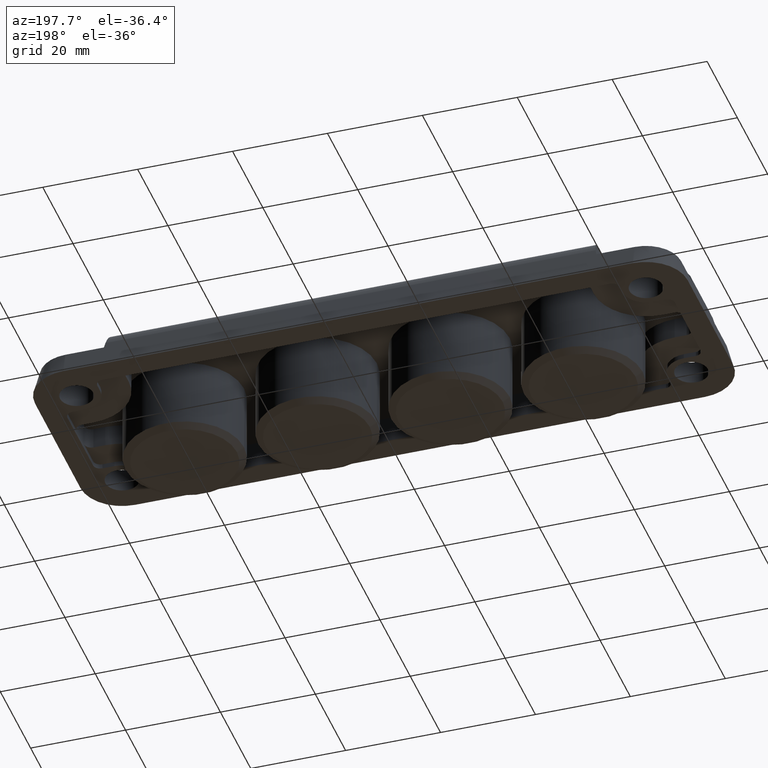
[diagram: clean part render]
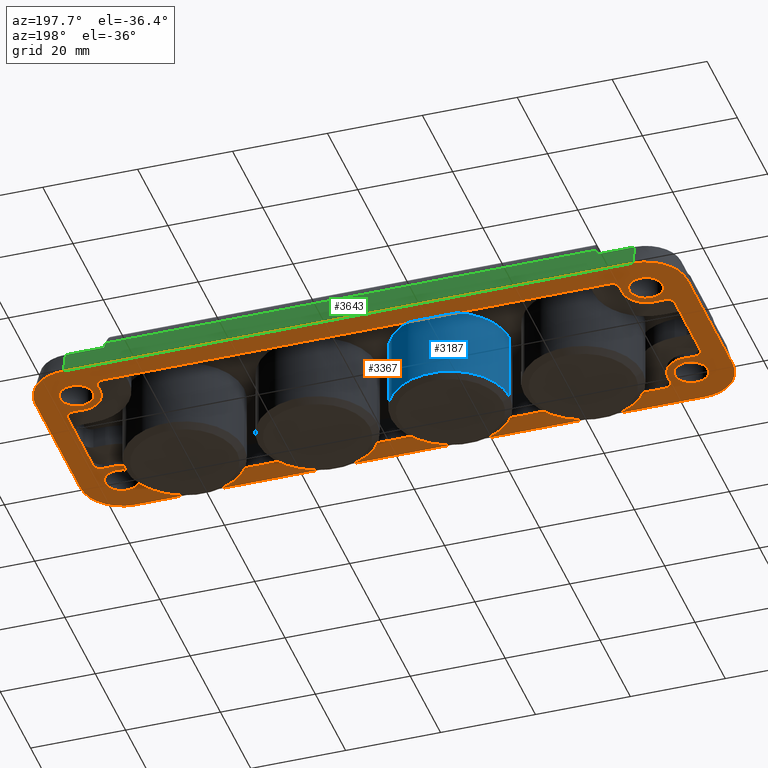
[diagram: same view with three faces highlighted in distinct colors, each labeled with its STEP entity id]
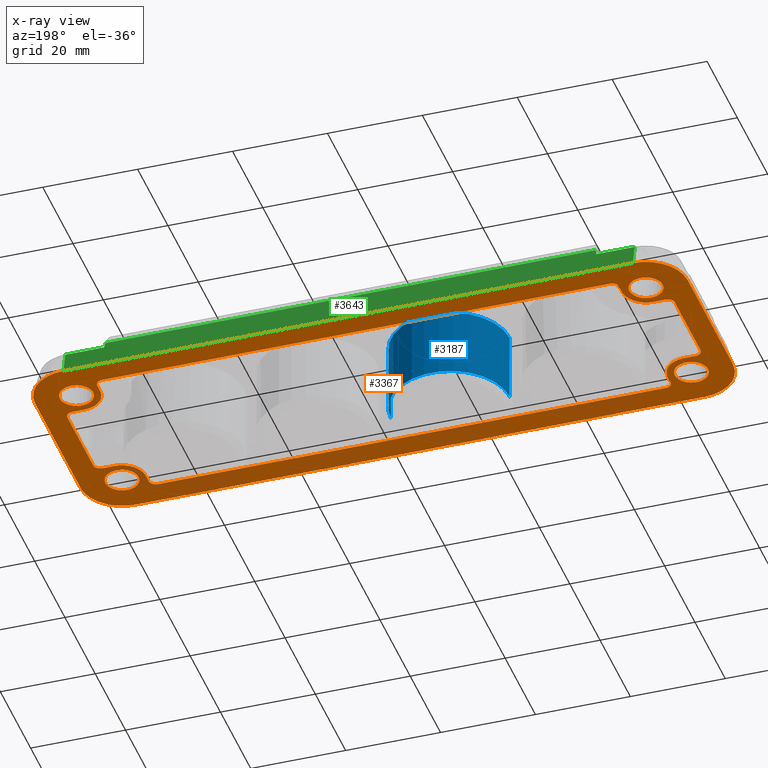
[diagram: x-ray of the same camera — body ghosted, the three highlighted faces saturated]
A machine part, auxiliary view with three faces highlighted in distinct colors.
The next image is the same camera in x-ray (body ghosted, the three faces saturated) — at least one of them is partly hidden behind the body in this view.
Their STEP definitions:

[orange] entity #3367 — the highlighted planar face has unit normal (0, -0, -1).
#1 = LINE ( 'NONE', #2269, #2408 ) ;
#2 = AXIS2_PLACEMENT_3D ( 'NONE', #2709, #1738, #841 ) ;
#3 = CARTESIAN_POINT ( 'NONE',  ( 68.75000000000005700, 15.00000000000001400, 0.0000000000000000000 ) ) ;
#18 = AXIS2_PLACEMENT_3D ( 'NONE', #431, #2366, #493 ) ;
#23 = ORIENTED_EDGE ( 'NONE', *, *, #2373, .T. ) ;
#32 = EDGE_CURVE ( 'NONE', #2331, #2320, #1364, .T. ) ;
#47 = CARTESIAN_POINT ( 'NONE',  ( 60.00000000000006400, -15.00000000000001400, 0.0000000000000000000 ) ) ;
#53 = CIRCLE ( 'NONE', #1791, 8.750000000000021300 ) ;
#70 = DIRECTION ( 'NONE',  ( 1.000000000000000000, 0.0000000000000000000, 3.081487911019574600E-033 ) ) ;
#78 = DIRECTION ( 'NONE',  ( 3.469446951953592900E-015, 1.000000000000000000, 3.097796936995217000E-032 ) ) ;
#81 = EDGE_LOOP ( 'NONE', ( #23, #1049 ) ) ;
#82 = CARTESIAN_POINT ( 'NONE',  ( -53.50000000000004300, -17.00000000000001400, 0.0000000000000000000 ) ) ;
#134 = ORIENTED_EDGE ( 'NONE', *, *, #1915, .F. ) ;
#135 = ORIENTED_EDGE ( 'NONE', *, *, #439, .F. ) ;
#136 = CARTESIAN_POINT ( 'NONE',  ( 60.00000000000007100, 15.00000000000001400, 0.0000000000000000000 ) ) ;
#174 = EDGE_CURVE ( 'NONE', #1181, #271, #1166, .T. ) ;
#212 = EDGE_LOOP ( 'NONE', ( #2571, #2336 ) ) ;
#225 = VERTEX_POINT ( 'NONE', #1515 ) ;
#250 = CARTESIAN_POINT ( 'NONE',  ( -62.50000000000005700, -8.500000000000007100, 0.0000000000000000000 ) ) ;
#270 = VERTEX_POINT ( 'NONE', #1250 ) ;
#271 = VERTEX_POINT ( 'NONE', #2773 ) ;
#275 = EDGE_CURVE ( 'NONE', #2019, #848, #2886, .T. ) ;
#319 = CARTESIAN_POINT ( 'NONE',  ( 62.50000000000004300, -10.00000000000000900, 0.0000000000000000000 ) ) ;
#324 = VERTEX_POINT ( 'NONE', #2181 ) ;
#326 = DIRECTION ( 'NONE',  ( -1.000000000000000000, 6.162975822039150600E-033, -3.081487911019575300E-033 ) ) ;
#327 = EDGE_LOOP ( 'NONE', ( #747, #3603 ) ) ;
#355 = EDGE_CURVE ( 'NONE', #361, #1500, #1848, .T. ) ;
#361 = VERTEX_POINT ( 'NONE', #593 ) ;
#388 = DIRECTION ( 'NONE',  ( -1.000000000000000000, 0.0000000000000000000, -3.081487911019574600E-033 ) ) ;
#409 = DIRECTION ( 'NONE',  ( 3.081487911019577400E-033, 3.118160315277577000E-032, 1.000000000000000000 ) ) ;
#415 = AXIS2_PLACEMENT_3D ( 'NONE', #564, #3641, #2710 ) ;
#421 = VERTEX_POINT ( 'NONE', #319 ) ;
#431 = CARTESIAN_POINT ( 'NONE',  ( -60.00000000000004300, -15.00000000000001400, 0.0000000000000000000 ) ) ;
#439 = EDGE_CURVE ( 'NONE', #3709, #2428, #1, .T. ) ;
#450 = FACE_BOUND ( 'NONE', #1151, .T. ) ;
#462 = DIRECTION ( 'NONE',  ( 3.081487911019577400E-033, 3.118160315277577000E-032, 1.000000000000000000 ) ) ;
#467 = DIRECTION ( 'NONE',  ( 1.000000000000000000, 0.0000000000000000000, 3.081487911019574600E-033 ) ) ;
#485 = EDGE_CURVE ( 'NONE', #3557, #2855, #3677, .T. ) ;
#493 = DIRECTION ( 'NONE',  ( -1.000000000000000000, 0.0000000000000000000, -3.081487911019574600E-033 ) ) ;
#508 = AXIS2_PLACEMENT_3D ( 'NONE', #526, #2836, #1853 ) ;
#511 = VERTEX_POINT ( 'NONE', #1353 ) ;
#512 = CARTESIAN_POINT ( 'NONE',  ( 60.00000000000007800, -23.74999999999999300, 0.0000000000000000000 ) ) ;
#517 = EDGE_CURVE ( 'NONE', #225, #1139, #1073, .T. ) ;
#518 = CARTESIAN_POINT ( 'NONE',  ( 53.50000000000007800, 17.00000000000001400, 0.0000000000000000000 ) ) ;
#526 = CARTESIAN_POINT ( 'NONE',  ( 53.50000000000007100, -17.00000000000001400, 0.0000000000000000000 ) ) ;
#528 = VERTEX_POINT ( 'NONE', #1054 ) ;
#536 = CIRCLE ( 'NONE', #761, 3.500000000000003100 ) ;
#547 = AXIS2_PLACEMENT_3D ( 'NONE', #250, #891, #2743 ) ;
#557 = ORIENTED_EDGE ( 'NONE', *, *, #32, .F. ) ;
#564 = CARTESIAN_POINT ( 'NONE',  ( -60.00000000000004300, -15.00000000000001400, 0.0000000000000000000 ) ) ;
#572 = ORIENTED_EDGE ( 'NONE', *, *, #355, .F. ) ;
#577 = ORIENTED_EDGE ( 'NONE', *, *, #1495, .F. ) ;
#578 = VERTEX_POINT ( 'NONE', #1382 ) ;
#593 = CARTESIAN_POINT ( 'NONE',  ( 55.00000000000007800, -15.00000000000001400, 0.0000000000000000000 ) ) ;
#602 = LINE ( 'NONE', #720, #1081 ) ;
#616 = CARTESIAN_POINT ( 'NONE',  ( 55.00000000000006400, -17.00000000000001400, 0.0000000000000000000 ) ) ;
#624 = AXIS2_PLACEMENT_3D ( 'NONE', #1998, #3233, #1968 ) ;
#636 = CARTESIAN_POINT ( 'NONE',  ( 60.00000000000006400, -15.00000000000001400, 0.0000000000000000000 ) ) ;
#643 = VECTOR ( 'NONE', #3090, 1000.000000000000000 ) ;
#669 = DIRECTION ( 'NONE',  ( -1.000000000000000000, 0.0000000000000000000, -3.081487911019574600E-033 ) ) ;
#678 = ORIENTED_EDGE ( 'NONE', *, *, #2586, .F. ) ;
#683 = AXIS2_PLACEMENT_3D ( 'NONE', #1722, #2707, #2407 ) ;
#689 = LINE ( 'NONE', #2911, #2929 ) ;
#690 = CARTESIAN_POINT ( 'NONE',  ( -60.00000000000005700, 23.75000000000005000, 0.0000000000000000000 ) ) ;
#695 = EDGE_CURVE ( 'NONE', #2464, #2331, #2256, .T. ) ;
#702 = EDGE_CURVE ( 'NONE', #864, #3458, #4018, .T. ) ;
#711 = EDGE_LOOP ( 'NONE', ( #577, #557, #2639, #1812, #2727, #2333, #2517, #678, #3098, #1633, #2282, #3947, #2125, #901, #3309, #135, #2130, #572, #941, #3688, #1980, #896, #134, #906 ) ) ;
#720 = CARTESIAN_POINT ( 'NONE',  ( -60.00000000000005700, -23.74999999999999300, 0.0000000000000000000 ) ) ;
#733 = CIRCLE ( 'NONE', #2462, 1.500000000000001300 ) ;
#738 = CARTESIAN_POINT ( 'NONE',  ( -53.50000000000004300, -18.50000000000001800, 0.0000000000000000000 ) ) ;
#743 = DIRECTION ( 'NONE',  ( -3.081487911019577400E-033, -3.118160315277577000E-032, -1.000000000000000000 ) ) ;
#747 = ORIENTED_EDGE ( 'NONE', *, *, #485, .T. ) ;
#749 = EDGE_CURVE ( 'NONE', #3161, #1529, #1753, .T. ) ;
#761 = AXIS2_PLACEMENT_3D ( 'NONE', #3263, #462, #1993 ) ;
#780 = CIRCLE ( 'NONE', #1979, 1.499999999999980500 ) ;
#787 = CARTESIAN_POINT ( 'NONE',  ( 63.50000000000007100, 15.00000000000001400, -1.078520768856852100E-032 ) ) ;
#801 = CARTESIAN_POINT ( 'NONE',  ( -60.00000000000005000, 10.00000000000000900, 0.0000000000000000000 ) ) ;
#815 = AXIS2_PLACEMENT_3D ( 'NONE', #1164, #2460, #3056 ) ;
#837 = DIRECTION ( 'NONE',  ( -1.000000000000000000, 0.0000000000000000000, -3.081487911019574600E-033 ) ) ;
#841 = DIRECTION ( 'NONE',  ( -1.000000000000000000, 0.0000000000000000000, -3.081487911019577400E-033 ) ) ;
#843 = ORIENTED_EDGE ( 'NONE', *, *, #3264, .T. ) ;
#847 = CARTESIAN_POINT ( 'NONE',  ( -55.00000000000002100, -17.00000000000001400, 0.0000000000000000000 ) ) ;
#848 = VERTEX_POINT ( 'NONE', #3420 ) ;
#864 = VERTEX_POINT ( 'NONE', #3 ) ;
#874 = LINE ( 'NONE', #3008, #968 ) ;
#884 = DIRECTION ( 'NONE',  ( 3.081487911019577400E-033, 3.118160315277577000E-032, 1.000000000000000000 ) ) ;
#891 = DIRECTION ( 'NONE',  ( -3.081487911019577400E-033, -3.118160315277577000E-032, -1.000000000000000000 ) ) ;
#892 = EDGE_CURVE ( 'NONE', #1911, #511, #1844, .T. ) ;
#894 = CARTESIAN_POINT ( 'NONE',  ( 56.50000000000006400, -15.00000000000001400, 1.078520768856851900E-032 ) ) ;
#896 = ORIENTED_EDGE ( 'NONE', *, *, #892, .F. ) ;
#901 = ORIENTED_EDGE ( 'NONE', *, *, #3106, .F. ) ;
#906 = ORIENTED_EDGE ( 'NONE', *, *, #3293, .F. ) ;
#911 = VERTEX_POINT ( 'NONE', #3164 ) ;
#941 = ORIENTED_EDGE ( 'NONE', *, *, #3439, .F. ) ;
#945 = DIRECTION ( 'NONE',  ( -1.000000000000000000, 0.0000000000000000000, -3.081487911019574600E-033 ) ) ;
#968 = VECTOR ( 'NONE', #837, 1000.000000000000000 ) ;
#973 = DIRECTION ( 'NONE',  ( -1.000000000000000000, 0.0000000000000000000, -3.081487911019580800E-033 ) ) ;
#976 = CARTESIAN_POINT ( 'NONE',  ( 60.00000000000007800, 15.00000000000001400, 0.0000000000000000000 ) ) ;
#980 = DIRECTION ( 'NONE',  ( -1.000000000000000000, 0.0000000000000000000, -3.081487911019573600E-033 ) ) ;
#1033 = CIRCLE ( 'NONE', #4015, 4.999999999999990200 ) ;
#1049 = ORIENTED_EDGE ( 'NONE', *, *, #1174, .T. ) ;
#1050 = ORIENTED_EDGE ( 'NONE', *, *, #3414, .F. ) ;
#1052 = EDGE_CURVE ( 'NONE', #1973, #3355, #2447, .T. ) ;
#1054 = CARTESIAN_POINT ( 'NONE',  ( -64.00000000000007100, 8.500000000000007100, 0.0000000000000000000 ) ) ;
#1058 = EDGE_CURVE ( 'NONE', #1529, #528, #689, .T. ) ;
#1073 = CIRCLE ( 'NONE', #624, 3.500000000000003100 ) ;
#1079 = FACE_BOUND ( 'NONE', #711, .T. ) ;
#1081 = VECTOR ( 'NONE', #70, 1000.000000000000000 ) ;
#1087 = DIRECTION ( 'NONE',  ( -1.000000000000000000, 0.0000000000000000000, -3.081487911019574600E-033 ) ) ;
#1102 = DIRECTION ( 'NONE',  ( 3.081487911019577400E-033, 3.118160315277577000E-032, 1.000000000000000000 ) ) ;
#1121 = CARTESIAN_POINT ( 'NONE',  ( -53.50000000000005700, 18.50000000000005700, 0.0000000000000000000 ) ) ;
#1137 = DIRECTION ( 'NONE',  ( -3.081487911019577400E-033, -3.118160315277577000E-032, -1.000000000000000000 ) ) ;
#1139 = VERTEX_POINT ( 'NONE', #787 ) ;
#1151 = EDGE_LOOP ( 'NONE', ( #843, #2328 ) ) ;
#1164 = CARTESIAN_POINT ( 'NONE',  ( -60.00000000000004300, 15.00000000000001400, 0.0000000000000000000 ) ) ;
#1166 = CIRCLE ( 'NONE', #1949, 8.750000000000021300 ) ;
#1171 = CARTESIAN_POINT ( 'NONE',  ( 63.50000000000007100, -15.00000000000001400, -1.078520768856852100E-032 ) ) ;
#1174 = EDGE_CURVE ( 'NONE', #3654, #2852, #1359, .T. ) ;
#1181 = VERTEX_POINT ( 'NONE', #512 ) ;
#1183 = CARTESIAN_POINT ( 'NONE',  ( 60.00000000000006400, 23.75000000000002100, 0.0000000000000000000 ) ) ;
#1207 = EDGE_CURVE ( 'NONE', #421, #2817, #874, .T. ) ;
#1214 = CARTESIAN_POINT ( 'NONE',  ( -56.50000000000002800, 15.00000000000001400, -1.078520768856852100E-032 ) ) ;
#1228 = VERTEX_POINT ( 'NONE', #3645 ) ;
#1238 = DIRECTION ( 'NONE',  ( 3.081487911019577400E-033, 3.118160315277577000E-032, 1.000000000000000000 ) ) ;
#1243 = CARTESIAN_POINT ( 'NONE',  ( -53.50000000000005000, 17.00000000000001400, 0.0000000000000000000 ) ) ;
#1250 = CARTESIAN_POINT ( 'NONE',  ( -60.00000000000005700, 23.75000000000005000, 0.0000000000000000000 ) ) ;
#1253 = CIRCLE ( 'NONE', #2, 1.500000000000001300 ) ;
#1256 = DIRECTION ( 'NONE',  ( -1.000000000000000000, 0.0000000000000000000, -3.081487911019573600E-033 ) ) ;
#1274 = CARTESIAN_POINT ( 'NONE',  ( -62.50000000000005700, 8.500000000000007100, 0.0000000000000000000 ) ) ;
#1283 = ORIENTED_EDGE ( 'NONE', *, *, #275, .F. ) ;
#1296 = DIRECTION ( 'NONE',  ( -1.000000000000000000, 0.0000000000000000000, -3.081487911019580800E-033 ) ) ;
#1327 = VERTEX_POINT ( 'NONE', #2390 ) ;
#1353 = CARTESIAN_POINT ( 'NONE',  ( 64.00000000000004300, -8.500000000000007100, 0.0000000000000000000 ) ) ;
#1359 = CIRCLE ( 'NONE', #18, 3.500000000000003100 ) ;
#1364 = LINE ( 'NONE', #2824, #3973 ) ;
#1372 = DIRECTION ( 'NONE',  ( -3.469446951953592900E-015, 1.000000000000000000, 3.061486495784442000E-032 ) ) ;
#1377 = CARTESIAN_POINT ( 'NONE',  ( 62.50000000000004300, 10.00000000000000900, 0.0000000000000000000 ) ) ;
#1382 = CARTESIAN_POINT ( 'NONE',  ( -60.00000000000005000, 10.00000000000000900, 0.0000000000000000000 ) ) ;
#1384 = CARTESIAN_POINT ( 'NONE',  ( 60.00000000000007100, 10.00000000000000900, 0.0000000000000000000 ) ) ;
#1434 = DIRECTION ( 'NONE',  ( -1.000000000000000000, 0.0000000000000000000, -3.081487911019577400E-033 ) ) ;
#1456 = DIRECTION ( 'NONE',  ( 1.000000000000000000, 0.0000000000000000000, 3.081487911019574600E-033 ) ) ;
#1460 = VECTOR ( 'NONE', #1456, 1000.000000000000000 ) ;
#1495 = EDGE_CURVE ( 'NONE', #2320, #1228, #1992, .T. ) ;
#1500 = VERTEX_POINT ( 'NONE', #3768 ) ;
#1510 = AXIS2_PLACEMENT_3D ( 'NONE', #518, #2669, #2976 ) ;
#1515 = CARTESIAN_POINT ( 'NONE',  ( 56.50000000000007100, 15.00000000000001400, 1.078520768856851900E-032 ) ) ;
#1522 = LINE ( 'NONE', #2168, #2940 ) ;
#1523 = DIRECTION ( 'NONE',  ( 3.081487911019577400E-033, 3.118160315277577000E-032, 1.000000000000000000 ) ) ;
#1527 = DIRECTION ( 'NONE',  ( -1.000000000000000000, 0.0000000000000000000, -3.081487911019574600E-033 ) ) ;
#1529 = VERTEX_POINT ( 'NONE', #3480 ) ;
#1554 = EDGE_CURVE ( 'NONE', #3458, #270, #4011, .T. ) ;
#1603 = EDGE_CURVE ( 'NONE', #2855, #3557, #3670, .T. ) ;
#1620 = DIRECTION ( 'NONE',  ( -3.081487911019577400E-033, -3.118160315277577000E-032, -1.000000000000000000 ) ) ;
#1625 = EDGE_CURVE ( 'NONE', #2428, #2524, #780, .T. ) ;
#1628 = CARTESIAN_POINT ( 'NONE',  ( -60.00000000000003600, 15.00000000000001400, 0.0000000000000000000 ) ) ;
#1633 = ORIENTED_EDGE ( 'NONE', *, *, #1058, .F. ) ;
#1650 = DIRECTION ( 'NONE',  ( -1.000000000000000000, 0.0000000000000000000, -3.081487911019577400E-033 ) ) ;
#1652 = LINE ( 'NONE', #3820, #3422 ) ;
#1698 = CARTESIAN_POINT ( 'NONE',  ( -60.00000000000002800, 15.00000000000001400, 0.0000000000000000000 ) ) ;
#1720 = CARTESIAN_POINT ( 'NONE',  ( 53.50000000000007100, 18.49999999999998900, 0.0000000000000000000 ) ) ;
#1722 = CARTESIAN_POINT ( 'NONE',  ( 60.00000000000007800, 15.00000000000001400, 0.0000000000000000000 ) ) ;
#1733 = EDGE_CURVE ( 'NONE', #1327, #2758, #2873, .T. ) ;
#1738 = DIRECTION ( 'NONE',  ( -3.081487911019577400E-033, -3.118160315277577000E-032, -1.000000000000000000 ) ) ;
#1753 = CIRCLE ( 'NONE', #547, 1.500000000000001300 ) ;
#1788 = CARTESIAN_POINT ( 'NONE',  ( -60.00000000000005700, -14.99999999999995700, 0.0000000000000000000 ) ) ;
#1791 = AXIS2_PLACEMENT_3D ( 'NONE', #1788, #2434, #2746 ) ;
#1801 = CARTESIAN_POINT ( 'NONE',  ( 62.50000000000004300, 8.500000000000007100, 0.0000000000000000000 ) ) ;
#1812 = ORIENTED_EDGE ( 'NONE', *, *, #3317, .F. ) ;
#1844 = LINE ( 'NONE', #4041, #2309 ) ;
#1848 = LINE ( 'NONE', #616, #3033 ) ;
#1853 = DIRECTION ( 'NONE',  ( -1.000000000000000000, 0.0000000000000000000, -3.081487911019573600E-033 ) ) ;
#1857 = CARTESIAN_POINT ( 'NONE',  ( -55.00000000000004300, 17.00000000000001400, 0.0000000000000000000 ) ) ;
#1882 = CARTESIAN_POINT ( 'NONE',  ( -60.00000000000003600, 15.00000000000001400, 0.0000000000000000000 ) ) ;
#1887 = DIRECTION ( 'NONE',  ( -3.469446951953592900E-015, -1.000000000000000000, -3.097796936995217000E-032 ) ) ;
#1892 = EDGE_CURVE ( 'NONE', #2472, #3064, #2732, .T. ) ;
#1896 = CIRCLE ( 'NONE', #3377, 8.750000000000021300 ) ;
#1897 = AXIS2_PLACEMENT_3D ( 'NONE', #976, #3135, #1256 ) ;
#1907 = CARTESIAN_POINT ( 'NONE',  ( -63.50000000000002800, 15.00000000000001400, 1.078520768856851900E-032 ) ) ;
#1911 = VERTEX_POINT ( 'NONE', #3653 ) ;
#1915 = EDGE_CURVE ( 'NONE', #2136, #1911, #733, .T. ) ;
#1945 = CARTESIAN_POINT ( 'NONE',  ( -55.00000000000003600, -17.00000000000001400, 0.0000000000000000000 ) ) ;
#1949 = AXIS2_PLACEMENT_3D ( 'NONE', #2421, #884, #2362 ) ;
#1958 = VECTOR ( 'NONE', #78, 1000.000000000000000 ) ;
#1968 = DIRECTION ( 'NONE',  ( -1.000000000000000000, 0.0000000000000000000, -3.081487911019574600E-033 ) ) ;
#1973 = VERTEX_POINT ( 'NONE', #894 ) ;
#1979 = AXIS2_PLACEMENT_3D ( 'NONE', #82, #743, #2261 ) ;
#1980 = ORIENTED_EDGE ( 'NONE', *, *, #4003, .F. ) ;
#1981 = ORIENTED_EDGE ( 'NONE', *, *, #3954, .F. ) ;
#1982 = CARTESIAN_POINT ( 'NONE',  ( -55.00000000000002800, -15.00000000000001400, 0.0000000000000000000 ) ) ;
#1985 = AXIS2_PLACEMENT_3D ( 'NONE', #1698, #3906, #2660 ) ;
#1992 = CIRCLE ( 'NONE', #1897, 5.000000000000011500 ) ;
#1993 = DIRECTION ( 'NONE',  ( -1.000000000000000000, 0.0000000000000000000, -3.081487911019574600E-033 ) ) ;
#1998 = CARTESIAN_POINT ( 'NONE',  ( 60.00000000000007100, 15.00000000000001400, 0.0000000000000000000 ) ) ;
#2004 = LINE ( 'NONE', #1384, #2748 ) ;
#2019 = VERTEX_POINT ( 'NONE', #2897 ) ;
#2060 = AXIS2_PLACEMENT_3D ( 'NONE', #47, #3191, #388 ) ;
#2068 = DIRECTION ( 'NONE',  ( 1.000000000000000000, 0.0000000000000000000, 3.081487911019577400E-033 ) ) ;
#2122 = ORIENTED_EDGE ( 'NONE', *, *, #1554, .F. ) ;
#2125 = ORIENTED_EDGE ( 'NONE', *, *, #1892, .F. ) ;
#2130 = ORIENTED_EDGE ( 'NONE', *, *, #3609, .F. ) ;
#2136 = VERTEX_POINT ( 'NONE', #1377 ) ;
#2143 = AXIS2_PLACEMENT_3D ( 'NONE', #1243, #2851, #980 ) ;
#2154 = DIRECTION ( 'NONE',  ( 1.000000000000000000, 0.0000000000000000000, 3.081487911019578000E-033 ) ) ;
#2168 = CARTESIAN_POINT ( 'NONE',  ( -60.00000000000005000, -10.00000000000000900, 0.0000000000000000000 ) ) ;
#2177 = VERTEX_POINT ( 'NONE', #1121 ) ;
#2181 = CARTESIAN_POINT ( 'NONE',  ( -62.50000000000005700, 10.00000000000000900, 0.0000000000000000000 ) ) ;
#2185 = ORIENTED_EDGE ( 'NONE', *, *, #2892, .F. ) ;
#2205 = DIRECTION ( 'NONE',  ( 0.0000000000000000000, -1.000000000000000000, -3.079641716389829500E-032 ) ) ;
#2209 = DIRECTION ( 'NONE',  ( 3.081487911019577400E-033, 3.118160315277577000E-032, 1.000000000000000000 ) ) ;
#2236 = CARTESIAN_POINT ( 'NONE',  ( 60.00000000000007100, -10.00000000000000900, 0.0000000000000000000 ) ) ;
#2250 = DIRECTION ( 'NONE',  ( 0.0000000000000000000, 1.000000000000000000, 3.079641716389829500E-032 ) ) ;
#2256 = CIRCLE ( 'NONE', #1510, 1.499999999999980500 ) ;
#2261 = DIRECTION ( 'NONE',  ( 1.000000000000000000, 0.0000000000000000000, 3.081487911019573600E-033 ) ) ;
#2269 = CARTESIAN_POINT ( 'NONE',  ( -53.50000000000004300, -18.50000000000001800, 0.0000000000000000000 ) ) ;
#2272 = EDGE_CURVE ( 'NONE', #528, #324, #3759, .T. ) ;
#2282 = ORIENTED_EDGE ( 'NONE', *, *, #749, .F. ) ;
#2309 = VECTOR ( 'NONE', #2205, 1000.000000000000000 ) ;
#2316 = LINE ( 'NONE', #2977, #2503 ) ;
#2320 = VERTEX_POINT ( 'NONE', #2599 ) ;
#2328 = ORIENTED_EDGE ( 'NONE', *, *, #517, .T. ) ;
#2331 = VERTEX_POINT ( 'NONE', #3857 ) ;
#2333 = ORIENTED_EDGE ( 'NONE', *, *, #1733, .F. ) ;
#2336 = ORIENTED_EDGE ( 'NONE', *, *, #1052, .T. ) ;
#2362 = DIRECTION ( 'NONE',  ( -1.000000000000000000, 0.0000000000000000000, -3.081487911019576000E-033 ) ) ;
#2365 = FACE_BOUND ( 'NONE', #212, .T. ) ;
#2366 = DIRECTION ( 'NONE',  ( 3.081487911019577400E-033, 3.118160315277577000E-032, 1.000000000000000000 ) ) ;
#2373 = EDGE_CURVE ( 'NONE', #2852, #3654, #536, .T. ) ;
#2390 = CARTESIAN_POINT ( 'NONE',  ( -55.00000000000001400, 15.00000000000001400, 0.0000000000000000000 ) ) ;
#2398 = LINE ( 'NONE', #801, #1460 ) ;
#2400 = VECTOR ( 'NONE', #326, 1000.000000000000000 ) ;
#2407 = DIRECTION ( 'NONE',  ( 1.000000000000000000, 0.0000000000000000000, 3.081487911019572200E-033 ) ) ;
#2408 = VECTOR ( 'NONE', #669, 1000.000000000000000 ) ;
#2421 = CARTESIAN_POINT ( 'NONE',  ( 60.00000000000007800, -14.99999999999995700, 0.0000000000000000000 ) ) ;
#2428 = VERTEX_POINT ( 'NONE', #738 ) ;
#2434 = DIRECTION ( 'NONE',  ( 3.081487911019577400E-033, 3.118160315277577000E-032, 1.000000000000000000 ) ) ;
#2447 = CIRCLE ( 'NONE', #2060, 3.500000000000003100 ) ;
#2460 = DIRECTION ( 'NONE',  ( 3.081487911019574600E-033, -3.118160315277577000E-032, -1.000000000000000000 ) ) ;
#2462 = AXIS2_PLACEMENT_3D ( 'NONE', #1801, #1137, #2068 ) ;
#2464 = VERTEX_POINT ( 'NONE', #1720 ) ;
#2472 = VERTEX_POINT ( 'NONE', #1982 ) ;
#2491 = CARTESIAN_POINT ( 'NONE',  ( 53.50000000000007100, -18.50000000000001800, 0.0000000000000000000 ) ) ;
#2503 = VECTOR ( 'NONE', #3692, 1000.000000000000000 ) ;
#2517 = ORIENTED_EDGE ( 'NONE', *, *, #3288, .F. ) ;
#2524 = VERTEX_POINT ( 'NONE', #847 ) ;
#2571 = ORIENTED_EDGE ( 'NONE', *, *, #3656, .T. ) ;
#2586 = EDGE_CURVE ( 'NONE', #324, #578, #2398, .T. ) ;
#2599 = CARTESIAN_POINT ( 'NONE',  ( 55.00000000000007100, 15.00000000000001400, 0.0000000000000000000 ) ) ;
#2609 = CIRCLE ( 'NONE', #1985, 5.000000000000011500 ) ;
#2639 = ORIENTED_EDGE ( 'NONE', *, *, #695, .F. ) ;
#2660 = DIRECTION ( 'NONE',  ( 1.000000000000000000, 0.0000000000000000000, 3.081487911019576300E-033 ) ) ;
#2669 = DIRECTION ( 'NONE',  ( -3.081487911019577400E-033, -3.118160315277577000E-032, -1.000000000000000000 ) ) ;
#2674 = CARTESIAN_POINT ( 'NONE',  ( -55.00000000000004300, 17.00000000000001400, 0.0000000000000000000 ) ) ;
#2700 = CIRCLE ( 'NONE', #508, 1.499999999999980500 ) ;
#2707 = DIRECTION ( 'NONE',  ( 3.081487911019577400E-033, 3.118160315277577000E-032, 1.000000000000000000 ) ) ;
#2709 = CARTESIAN_POINT ( 'NONE',  ( 62.50000000000004300, -8.500000000000007100, 0.0000000000000000000 ) ) ;
#2710 = DIRECTION ( 'NONE',  ( -1.000000000000000000, 0.0000000000000000000, -3.081487911019578000E-033 ) ) ;
#2720 = AXIS2_PLACEMENT_3D ( 'NONE', #1882, #2209, #973 ) ;
#2721 = ORIENTED_EDGE ( 'NONE', *, *, #3840, .F. ) ;
#2727 = ORIENTED_EDGE ( 'NONE', *, *, #2834, .F. ) ;
#2732 = CIRCLE ( 'NONE', #415, 4.999999999999990200 ) ;
#2743 = DIRECTION ( 'NONE',  ( 1.000000000000000000, 0.0000000000000000000, 3.081487911019577400E-033 ) ) ;
#2746 = DIRECTION ( 'NONE',  ( 1.000000000000000000, 0.0000000000000000000, 3.081487911019576000E-033 ) ) ;
#2748 = VECTOR ( 'NONE', #467, 1000.000000000000000 ) ;
#2751 = AXIS2_PLACEMENT_3D ( 'NONE', #1628, #409, #1296 ) ;
#2758 = VERTEX_POINT ( 'NONE', #1857 ) ;
#2773 = CARTESIAN_POINT ( 'NONE',  ( 68.75000000000007100, -14.99999999999995700, 0.0000000000000000000 ) ) ;
#2781 = VECTOR ( 'NONE', #1372, 1000.000000000000000 ) ;
#2791 = CARTESIAN_POINT ( 'NONE',  ( -63.50000000000004300, -15.00000000000001400, 1.078520768856851900E-032 ) ) ;
#2797 = DIRECTION ( 'NONE',  ( 3.469446951953592900E-015, -1.000000000000000000, -3.061486495784442000E-032 ) ) ;
#2799 = AXIS2_PLACEMENT_3D ( 'NONE', #1274, #1620, #1650 ) ;
#2817 = VERTEX_POINT ( 'NONE', #2236 ) ;
#2824 = CARTESIAN_POINT ( 'NONE',  ( 55.00000000000007100, 17.00000000000001400, 0.0000000000000000000 ) ) ;
#2834 = EDGE_CURVE ( 'NONE', #2758, #2177, #2838, .T. ) ;
#2835 = FACE_OUTER_BOUND ( 'NONE', #3859, .T. ) ;
#2836 = DIRECTION ( 'NONE',  ( -3.081487911019577400E-033, -3.118160315277577000E-032, -1.000000000000000000 ) ) ;
#2838 = CIRCLE ( 'NONE', #2143, 1.499999999999980500 ) ;
#2851 = DIRECTION ( 'NONE',  ( -3.081487911019577400E-033, -3.118160315277577000E-032, -1.000000000000000000 ) ) ;
#2852 = VERTEX_POINT ( 'NONE', #3483 ) ;
#2855 = VERTEX_POINT ( 'NONE', #1907 ) ;
#2860 = DIRECTION ( 'NONE',  ( 0.0000000000000000000, 1.000000000000000000, 3.079641716389829500E-032 ) ) ;
#2873 = LINE ( 'NONE', #2674, #2781 ) ;
#2886 = LINE ( 'NONE', #3129, #643 ) ;
#2892 = EDGE_CURVE ( 'NONE', #911, #1181, #602, .T. ) ;
#2897 = CARTESIAN_POINT ( 'NONE',  ( -68.75000000000008500, 15.00000000000001400, 0.0000000000000000000 ) ) ;
#2911 = CARTESIAN_POINT ( 'NONE',  ( -64.00000000000007100, 8.500000000000007100, 0.0000000000000000000 ) ) ;
#2929 = VECTOR ( 'NONE', #2250, 1000.000000000000000 ) ;
#2940 = VECTOR ( 'NONE', #945, 1000.000000000000000 ) ;
#2976 = DIRECTION ( 'NONE',  ( 1.000000000000000000, 0.0000000000000000000, 3.081487911019573600E-033 ) ) ;
#2977 = CARTESIAN_POINT ( 'NONE',  ( -53.50000000000005700, 18.50000000000000400, 0.0000000000000000000 ) ) ;
#2990 = AXIS2_PLACEMENT_3D ( 'NONE', #136, #3921, #1087 ) ;
#3008 = CARTESIAN_POINT ( 'NONE',  ( 60.00000000000007100, -10.00000000000000900, 0.0000000000000000000 ) ) ;
#3033 = VECTOR ( 'NONE', #2797, 1000.000000000000000 ) ;
#3035 = FACE_BOUND ( 'NONE', #81, .T. ) ;
#3049 = EDGE_CURVE ( 'NONE', #3064, #3161, #1522, .T. ) ;
#3056 = DIRECTION ( 'NONE',  ( -1.000000000000000000, 0.0000000000000000000, -3.081487911019574600E-033 ) ) ;
#3064 = VERTEX_POINT ( 'NONE', #3413 ) ;
#3086 = CIRCLE ( 'NONE', #3096, 3.500000000000003100 ) ;
#3089 = FACE_BOUND ( 'NONE', #327, .T. ) ;
#3090 = DIRECTION ( 'NONE',  ( 0.0000000000000000000, -1.000000000000000000, -3.079641716389829500E-032 ) ) ;
#3096 = AXIS2_PLACEMENT_3D ( 'NONE', #636, #1238, #1527 ) ;
#3098 = ORIENTED_EDGE ( 'NONE', *, *, #2272, .F. ) ;
#3106 = EDGE_CURVE ( 'NONE', #2524, #2472, #3682, .T. ) ;
#3129 = CARTESIAN_POINT ( 'NONE',  ( -68.75000000000008500, -14.99999999999995700, 0.0000000000000000000 ) ) ;
#3135 = DIRECTION ( 'NONE',  ( 3.081487911019577400E-033, 3.118160315277577000E-032, 1.000000000000000000 ) ) ;
#3156 = CARTESIAN_POINT ( 'NONE',  ( -62.50000000000005700, -10.00000000000000900, 0.0000000000000000000 ) ) ;
#3161 = VERTEX_POINT ( 'NONE', #3156 ) ;
#3164 = CARTESIAN_POINT ( 'NONE',  ( -60.00000000000005700, -23.74999999999999300, 0.0000000000000000000 ) ) ;
#3191 = DIRECTION ( 'NONE',  ( 3.081487911019577400E-033, 3.118160315277577000E-032, 1.000000000000000000 ) ) ;
#3233 = DIRECTION ( 'NONE',  ( 3.081487911019577400E-033, 3.118160315277577000E-032, 1.000000000000000000 ) ) ;
#3263 = CARTESIAN_POINT ( 'NONE',  ( -60.00000000000004300, -15.00000000000001400, 0.0000000000000000000 ) ) ;
#3264 = EDGE_CURVE ( 'NONE', #1139, #225, #3427, .T. ) ;
#3288 = EDGE_CURVE ( 'NONE', #578, #1327, #2609, .T. ) ;
#3293 = EDGE_CURVE ( 'NONE', #1228, #2136, #2004, .T. ) ;
#3309 = ORIENTED_EDGE ( 'NONE', *, *, #1625, .F. ) ;
#3317 = EDGE_CURVE ( 'NONE', #2177, #2464, #2316, .T. ) ;
#3355 = VERTEX_POINT ( 'NONE', #1171 ) ;
#3367 = ADVANCED_FACE ( 'NONE', ( #2365, #450, #3035, #3089, #1079, #2835 ), #3931, .T. ) ;
#3377 = AXIS2_PLACEMENT_3D ( 'NONE', #3981, #1102, #1434 ) ;
#3392 = CARTESIAN_POINT ( 'NONE',  ( 60.00000000000006400, -15.00000000000001400, 0.0000000000000000000 ) ) ;
#3413 = CARTESIAN_POINT ( 'NONE',  ( -60.00000000000005000, -10.00000000000000900, 0.0000000000000000000 ) ) ;
#3414 = EDGE_CURVE ( 'NONE', #848, #911, #53, .T. ) ;
#3420 = CARTESIAN_POINT ( 'NONE',  ( -68.75000000000008500, -14.99999999999995700, 0.0000000000000000000 ) ) ;
#3422 = VECTOR ( 'NONE', #2860, 1000.000000000000000 ) ;
#3427 = CIRCLE ( 'NONE', #2990, 3.500000000000003100 ) ;
#3439 = EDGE_CURVE ( 'NONE', #2817, #361, #1033, .T. ) ;
#3458 = VERTEX_POINT ( 'NONE', #1183 ) ;
#3480 = CARTESIAN_POINT ( 'NONE',  ( -64.00000000000007100, -8.500000000000007100, 0.0000000000000000000 ) ) ;
#3483 = CARTESIAN_POINT ( 'NONE',  ( -56.50000000000003600, -15.00000000000001400, -1.078520768856852100E-032 ) ) ;
#3557 = VERTEX_POINT ( 'NONE', #1214 ) ;
#3603 = ORIENTED_EDGE ( 'NONE', *, *, #1603, .T. ) ;
#3609 = EDGE_CURVE ( 'NONE', #1500, #3709, #2700, .T. ) ;
#3641 = DIRECTION ( 'NONE',  ( 3.081487911019577400E-033, 3.118160315277577000E-032, 1.000000000000000000 ) ) ;
#3645 = CARTESIAN_POINT ( 'NONE',  ( 60.00000000000007100, 10.00000000000000900, 0.0000000000000000000 ) ) ;
#3650 = ORIENTED_EDGE ( 'NONE', *, *, #702, .F. ) ;
#3653 = CARTESIAN_POINT ( 'NONE',  ( 64.00000000000004300, 8.500000000000007100, 0.0000000000000000000 ) ) ;
#3654 = VERTEX_POINT ( 'NONE', #2791 ) ;
#3656 = EDGE_CURVE ( 'NONE', #3355, #1973, #3086, .T. ) ;
#3670 = CIRCLE ( 'NONE', #2751, 3.499999999999996000 ) ;
#3677 = CIRCLE ( 'NONE', #2720, 3.499999999999996000 ) ;
#3682 = LINE ( 'NONE', #1945, #1958 ) ;
#3688 = ORIENTED_EDGE ( 'NONE', *, *, #1207, .F. ) ;
#3692 = DIRECTION ( 'NONE',  ( 1.000000000000000000, -6.162975822039150600E-033, 3.081487911019575300E-033 ) ) ;
#3709 = VERTEX_POINT ( 'NONE', #2491 ) ;
#3759 = CIRCLE ( 'NONE', #2799, 1.500000000000001300 ) ;
#3768 = CARTESIAN_POINT ( 'NONE',  ( 55.00000000000006400, -17.00000000000001400, 0.0000000000000000000 ) ) ;
#3820 = CARTESIAN_POINT ( 'NONE',  ( 68.75000000000005700, -14.99999999999995700, 0.0000000000000000000 ) ) ;
#3834 = ORIENTED_EDGE ( 'NONE', *, *, #174, .F. ) ;
#3840 = EDGE_CURVE ( 'NONE', #271, #864, #1652, .T. ) ;
#3857 = CARTESIAN_POINT ( 'NONE',  ( 55.00000000000005700, 17.00000000000001400, 0.0000000000000000000 ) ) ;
#3859 = EDGE_LOOP ( 'NONE', ( #1981, #2122, #3650, #2721, #3834, #2185, #1050, #1283 ) ) ;
#3906 = DIRECTION ( 'NONE',  ( 3.081487911019577400E-033, 3.118160315277577000E-032, 1.000000000000000000 ) ) ;
#3921 = DIRECTION ( 'NONE',  ( 3.081487911019577400E-033, 3.118160315277577000E-032, 1.000000000000000000 ) ) ;
#3931 = PLANE ( 'NONE',  #815 ) ;
#3947 = ORIENTED_EDGE ( 'NONE', *, *, #3049, .F. ) ;
#3954 = EDGE_CURVE ( 'NONE', #270, #2019, #1896, .T. ) ;
#3973 = VECTOR ( 'NONE', #1887, 1000.000000000000000 ) ;
#3981 = CARTESIAN_POINT ( 'NONE',  ( -60.00000000000004300, 15.00000000000001400, 0.0000000000000000000 ) ) ;
#4003 = EDGE_CURVE ( 'NONE', #511, #421, #1253, .T. ) ;
#4011 = LINE ( 'NONE', #690, #2400 ) ;
#4015 = AXIS2_PLACEMENT_3D ( 'NONE', #3392, #1523, #2154 ) ;
#4018 = CIRCLE ( 'NONE', #683, 8.750000000000035500 ) ;
#4041 = CARTESIAN_POINT ( 'NONE',  ( 64.00000000000004300, 8.500000000000007100, 0.0000000000000000000 ) ) ;

[blue] entity #3187 — the highlighted cylindrical surface (partial cylindrical patch) has radius 12.5 mm, axis along (0, 0, 1).
#7 = CARTESIAN_POINT ( 'NONE',  ( -1.500000000000003100, 0.0000000000000000000, -65.35533905932739200 ) ) ;
#62 = DIRECTION ( 'NONE',  ( 3.081487911019577400E-033, 3.118160315277577000E-032, 1.000000000000000000 ) ) ;
#91 = CARTESIAN_POINT ( 'NONE',  ( -14.00000000000001400, 0.0000000000000000000, -65.35533905932739200 ) ) ;
#189 = CIRCLE ( 'NONE', #2312, 12.50000000000001100 ) ;
#203 = VECTOR ( 'NONE', #3802, 1000.000000000000000 ) ;
#256 = CARTESIAN_POINT ( 'NONE',  ( -14.00000000000001400, 0.0000000000000000000, -9.133974596215566100 ) ) ;
#309 = AXIS2_PLACEMENT_3D ( 'NONE', #91, #62, #1309 ) ;
#381 = EDGE_CURVE ( 'NONE', #3960, #3432, #2500, .T. ) ;
#736 = AXIS2_PLACEMENT_3D ( 'NONE', #256, #1205, #2463 ) ;
#744 = LINE ( 'NONE', #3194, #203 ) ;
#1205 = DIRECTION ( 'NONE',  ( 3.081487911019577400E-033, 3.118160315277577000E-032, 1.000000000000000000 ) ) ;
#1309 = DIRECTION ( 'NONE',  ( 1.000000000000000000, 0.0000000000000000000, 0.0000000000000000000 ) ) ;
#1335 = EDGE_CURVE ( 'NONE', #3960, #1581, #1596, .T. ) ;
#1513 = CARTESIAN_POINT ( 'NONE',  ( -1.500000000000004900, 0.0000000000000000000, 5.500000000000005300 ) ) ;
#1581 = VERTEX_POINT ( 'NONE', #2862 ) ;
#1596 = CIRCLE ( 'NONE', #736, 12.50000000000000900 ) ;
#1730 = CARTESIAN_POINT ( 'NONE',  ( -14.00000000000001600, 0.0000000000000000000, 5.500000000000005300 ) ) ;
#2017 = DIRECTION ( 'NONE',  ( 3.081487911019577400E-033, 3.118160315277577000E-032, 1.000000000000000000 ) ) ;
#2098 = VECTOR ( 'NONE', #2487, 1000.000000000000000 ) ;
#2131 = ORIENTED_EDGE ( 'NONE', *, *, #1335, .T. ) ;
#2206 = EDGE_CURVE ( 'NONE', #3432, #3058, #189, .T. ) ;
#2312 = AXIS2_PLACEMENT_3D ( 'NONE', #1730, #2017, #2986 ) ;
#2463 = DIRECTION ( 'NONE',  ( -1.000000000000000000, 0.0000000000000000000, 0.0000000000000000000 ) ) ;
#2487 = DIRECTION ( 'NONE',  ( 3.081487911019577400E-033, 3.118160315277577000E-032, 1.000000000000000000 ) ) ;
#2500 = LINE ( 'NONE', #7, #2098 ) ;
#2775 = ORIENTED_EDGE ( 'NONE', *, *, #2206, .F. ) ;
#2862 = CARTESIAN_POINT ( 'NONE',  ( -26.50000000000001800, 1.530808498934193700E-015, -9.133974596215566100 ) ) ;
#2906 = EDGE_LOOP ( 'NONE', ( #2131, #3699, #2775, #3449 ) ) ;
#2936 = FACE_OUTER_BOUND ( 'NONE', #2906, .T. ) ;
#2986 = DIRECTION ( 'NONE',  ( 1.000000000000000000, 0.0000000000000000000, 0.0000000000000000000 ) ) ;
#3058 = VERTEX_POINT ( 'NONE', #3145 ) ;
#3145 = CARTESIAN_POINT ( 'NONE',  ( -26.50000000000001800, 1.530808498934193900E-015, 5.500000000000005300 ) ) ;
#3183 = EDGE_CURVE ( 'NONE', #1581, #3058, #744, .T. ) ;
#3187 = ADVANCED_FACE ( 'NONE', ( #2936 ), #3335, .T. ) ;
#3194 = CARTESIAN_POINT ( 'NONE',  ( -26.50000000000002500, 1.530808498934192700E-015, -65.35533905932739200 ) ) ;
#3333 = CARTESIAN_POINT ( 'NONE',  ( -1.500000000000013500, 1.981227669599819700E-030, -9.133974596215566100 ) ) ;
#3335 = CYLINDRICAL_SURFACE ( 'NONE', #309, 12.50000000000001100 ) ;
#3432 = VERTEX_POINT ( 'NONE', #1513 ) ;
#3449 = ORIENTED_EDGE ( 'NONE', *, *, #381, .F. ) ;
#3699 = ORIENTED_EDGE ( 'NONE', *, *, #3183, .T. ) ;
#3802 = DIRECTION ( 'NONE',  ( 3.081487911019577400E-033, 3.118160315277577000E-032, 1.000000000000000000 ) ) ;
#3960 = VERTEX_POINT ( 'NONE', #3333 ) ;

[green] entity #3643 — the highlighted planar face has unit normal (0, 0.9659, 0.2588).
#55 = CARTESIAN_POINT ( 'NONE',  ( -60.00000000000005700, 22.06350226723934000, 6.294095225512608100 ) ) ;
#76 = DIRECTION ( 'NONE',  ( 1.000000000000000000, -0.0000000000000000000, 3.081487911019574600E-033 ) ) ;
#234 = CARTESIAN_POINT ( 'NONE',  ( 51.88163490354237700, 22.41025403784443900, 5.000000000000004400 ) ) ;
#263 = VERTEX_POINT ( 'NONE', #3724 ) ;
#270 = VERTEX_POINT ( 'NONE', #1250 ) ;
#326 = DIRECTION ( 'NONE',  ( -1.000000000000000000, 6.162975822039150600E-033, -3.081487911019575300E-033 ) ) ;
#366 = AXIS2_PLACEMENT_3D ( 'NONE', #3117, #2214, #2825 ) ;
#378 = VECTOR ( 'NONE', #2691, 1000.000000000000100 ) ;
#432 = EDGE_CURVE ( 'NONE', #1686, #263, #3577, .T. ) ;
#502 = VECTOR ( 'NONE', #3243, 1000.000000000000000 ) ;
#605 = ORIENTED_EDGE ( 'NONE', *, *, #2213, .T. ) ;
#690 = CARTESIAN_POINT ( 'NONE',  ( -60.00000000000005700, 23.75000000000005000, 0.0000000000000000000 ) ) ;
#799 = CARTESIAN_POINT ( 'NONE',  ( -52.96727842896270000, 24.06001464019613700, -1.156990388301942800 ) ) ;
#879 = LINE ( 'NONE', #3543, #502 ) ;
#1089 = CARTESIAN_POINT ( 'NONE',  ( -60.00000000000005700, 22.41025403784445300, 5.000000000000004400 ) ) ;
#1108 = EDGE_CURVE ( 'NONE', #1191, #3458, #3672, .T. ) ;
#1140 = CARTESIAN_POINT ( 'NONE',  ( 60.00000000000006400, 22.41025403784443900, 5.000000000000004400 ) ) ;
#1183 = CARTESIAN_POINT ( 'NONE',  ( 60.00000000000006400, 23.75000000000002100, 0.0000000000000000000 ) ) ;
#1185 = ORIENTED_EDGE ( 'NONE', *, *, #1554, .T. ) ;
#1191 = VERTEX_POINT ( 'NONE', #1140 ) ;
#1250 = CARTESIAN_POINT ( 'NONE',  ( -60.00000000000005700, 23.75000000000005000, 0.0000000000000000000 ) ) ;
#1252 = VECTOR ( 'NONE', #2969, 1000.000000000000200 ) ;
#1255 = PLANE ( 'NONE',  #366 ) ;
#1344 = EDGE_LOOP ( 'NONE', ( #605, #3116, #3984, #1619, #1763, #1185, #2383, #3698 ) ) ;
#1357 = CARTESIAN_POINT ( 'NONE',  ( 51.65345099967851200, 22.06350226723938200, 6.294095225512608100 ) ) ;
#1454 = LINE ( 'NONE', #799, #378 ) ;
#1463 = LINE ( 'NONE', #55, #1553 ) ;
#1524 = VERTEX_POINT ( 'NONE', #2202 ) ;
#1526 = EDGE_CURVE ( 'NONE', #1524, #3951, #1463, .T. ) ;
#1553 = VECTOR ( 'NONE', #1904, 1000.000000000000000 ) ;
#1554 = EDGE_CURVE ( 'NONE', #3458, #270, #4011, .T. ) ;
#1559 = LINE ( 'NONE', #3451, #2601 ) ;
#1571 = DIRECTION ( 'NONE',  ( -1.540743955509788300E-033, 0.2588190451025215200, -0.9659258262890680900 ) ) ;
#1619 = ORIENTED_EDGE ( 'NONE', *, *, #1804, .T. ) ;
#1658 = CARTESIAN_POINT ( 'NONE',  ( -60.00000000000005700, 22.41025403784445300, 5.000000000000004400 ) ) ;
#1686 = VERTEX_POINT ( 'NONE', #1658 ) ;
#1763 = ORIENTED_EDGE ( 'NONE', *, *, #1108, .T. ) ;
#1804 = EDGE_CURVE ( 'NONE', #2712, #1191, #3219, .T. ) ;
#1904 = DIRECTION ( 'NONE',  ( 1.000000000000000000, -0.0000000000000000000, 3.081487911019574600E-033 ) ) ;
#2052 = FACE_OUTER_BOUND ( 'NONE', #1344, .T. ) ;
#2202 = CARTESIAN_POINT ( 'NONE',  ( -51.65345099967849800, 22.06350226723934000, 6.294095225512608100 ) ) ;
#2213 = EDGE_CURVE ( 'NONE', #263, #1524, #1454, .T. ) ;
#2214 = DIRECTION ( 'NONE',  ( 6.162975822039150600E-033, 0.9659258262890680900, 0.2588190451025215700 ) ) ;
#2383 = ORIENTED_EDGE ( 'NONE', *, *, #3584, .F. ) ;
#2400 = VECTOR ( 'NONE', #326, 1000.000000000000000 ) ;
#2601 = VECTOR ( 'NONE', #1571, 1000.000000000000200 ) ;
#2691 = DIRECTION ( 'NONE',  ( 0.1679009179374287600, -0.2551448178209432300, 0.9522134233956620600 ) ) ;
#2712 = VERTEX_POINT ( 'NONE', #234 ) ;
#2825 = DIRECTION ( 'NONE',  ( 3.081487911019576700E-033, -0.2588190451025215700, 0.9659258262890680900 ) ) ;
#2969 = DIRECTION ( 'NONE',  ( -1.540743955509788300E-033, 0.2588190451025215200, -0.9659258262890680900 ) ) ;
#3116 = ORIENTED_EDGE ( 'NONE', *, *, #1526, .T. ) ;
#3117 = CARTESIAN_POINT ( 'NONE',  ( -60.00000000000005700, 23.75000000000005000, 0.0000000000000000000 ) ) ;
#3219 = LINE ( 'NONE', #1089, #3718 ) ;
#3243 = DIRECTION ( 'NONE',  ( 0.1679009179374284500, 0.2551448178209432800, -0.9522134233956621700 ) ) ;
#3451 = CARTESIAN_POINT ( 'NONE',  ( -60.00000000000005700, 23.75000000000005000, 0.0000000000000000000 ) ) ;
#3458 = VERTEX_POINT ( 'NONE', #1183 ) ;
#3488 = CARTESIAN_POINT ( 'NONE',  ( -60.00000000000005700, 22.41025403784445300, 5.000000000000004400 ) ) ;
#3543 = CARTESIAN_POINT ( 'NONE',  ( 49.58439223965498100, 18.91932874590243700, 18.02831055495479600 ) ) ;
#3573 = DIRECTION ( 'NONE',  ( 1.000000000000000000, -0.0000000000000000000, 3.081487911019574600E-033 ) ) ;
#3577 = LINE ( 'NONE', #3488, #3775 ) ;
#3584 = EDGE_CURVE ( 'NONE', #1686, #270, #1559, .T. ) ;
#3608 = EDGE_CURVE ( 'NONE', #3951, #2712, #879, .T. ) ;
#3643 = ADVANCED_FACE ( 'NONE', ( #2052 ), #1255, .T. ) ;
#3672 = LINE ( 'NONE', #3898, #1252 ) ;
#3698 = ORIENTED_EDGE ( 'NONE', *, *, #432, .T. ) ;
#3718 = VECTOR ( 'NONE', #3573, 1000.000000000000000 ) ;
#3724 = CARTESIAN_POINT ( 'NONE',  ( -51.88163490354237000, 22.41025403784445300, 5.000000000000004400 ) ) ;
#3775 = VECTOR ( 'NONE', #76, 1000.000000000000000 ) ;
#3898 = CARTESIAN_POINT ( 'NONE',  ( 60.00000000000006400, 23.75000000000007800, 0.0000000000000000000 ) ) ;
#3951 = VERTEX_POINT ( 'NONE', #1357 ) ;
#3984 = ORIENTED_EDGE ( 'NONE', *, *, #3608, .T. ) ;
#4011 = LINE ( 'NONE', #690, #2400 ) ;